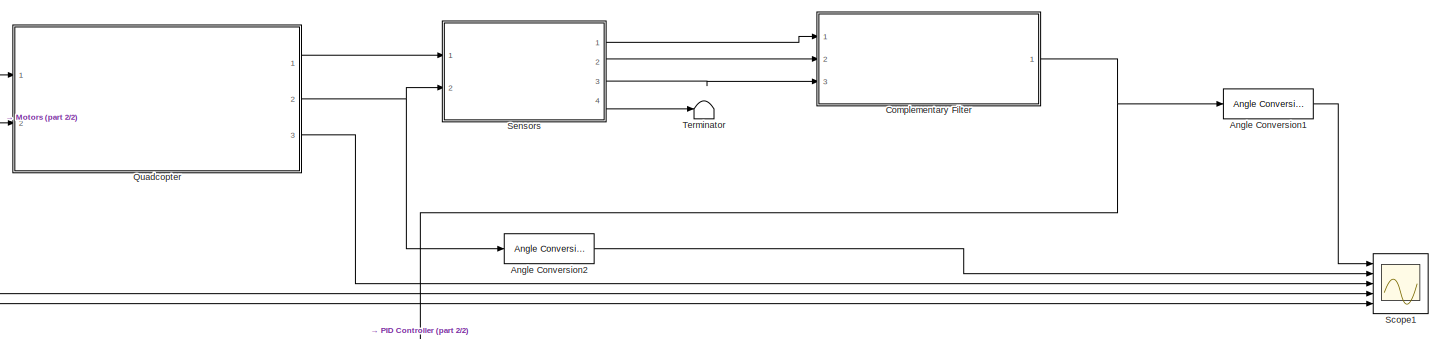
[diagram: root canvas - part 1/2, full width, top band]
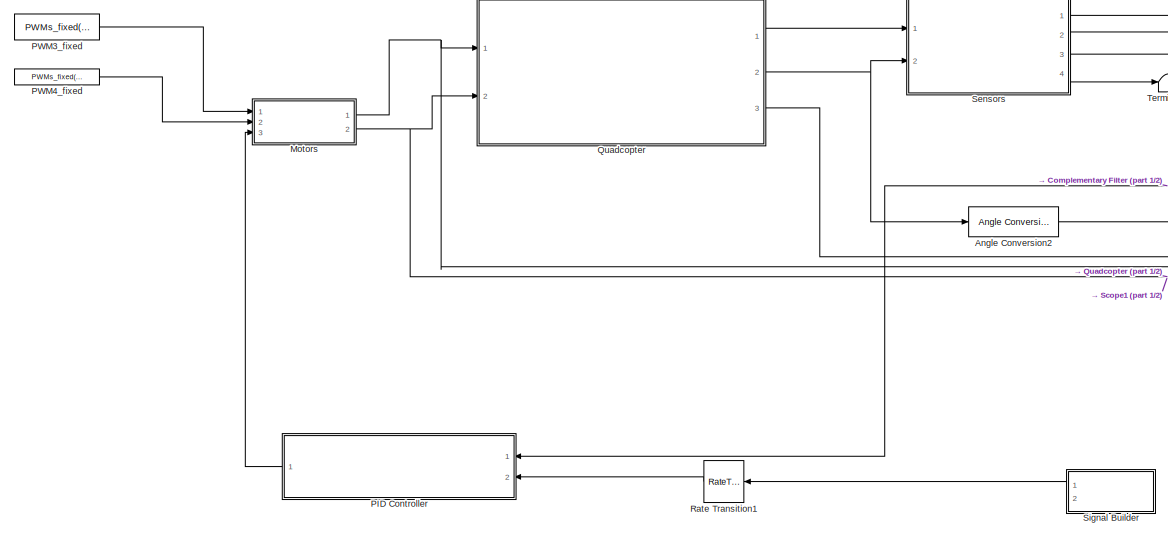
[diagram: root canvas - part 2/2, left side, full height]
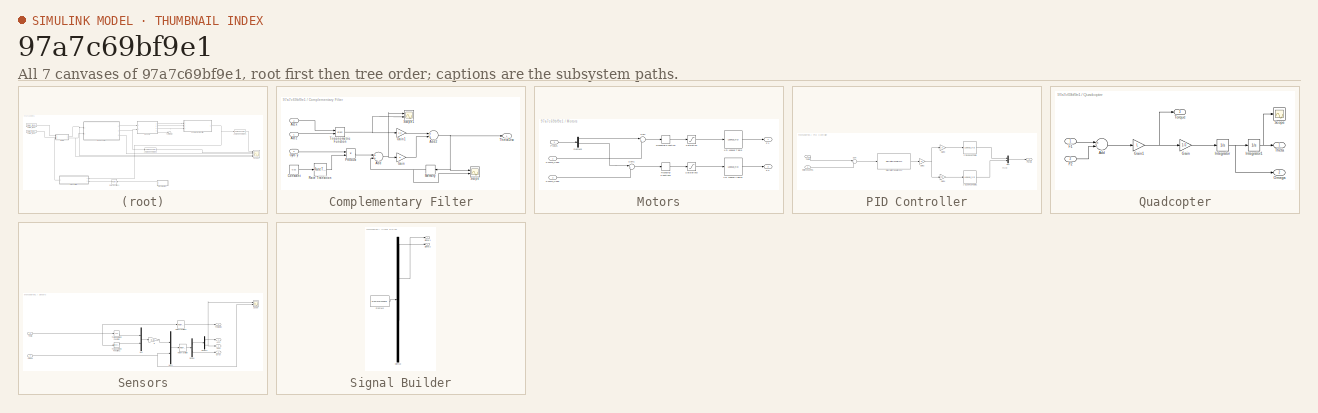
[diagram: thumbnail index - all 7 canvases of the model, root first then tree order]
MODEL slx_97a7c69bf9e1
KIND model
BLOCK [Reference] Angle Conversion1  REF=aerolibconvert2/Angle Conversion
  IU = rad
  OU = deg
  Ports = [1, 1]
  SourceBlock = aerolibconvert2/Angle Conversion
  SourceType = Angle Conversion
BLOCK [Reference] Angle Conversion2  REF=aerolibconvert2/Angle Conversion
  IU = rad
  OU = deg
  Ports = [1, 1]
  SourceBlock = aerolibconvert2/Angle Conversion
  SourceType = Angle Conversion
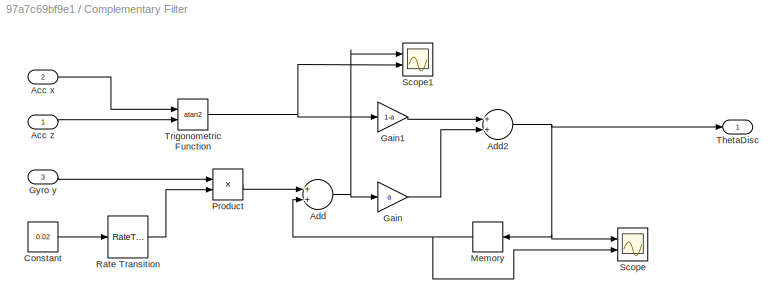
BLOCK [SubSystem] Complementary Filter
  Ports = [3, 1]
  RequestExecContextInheritance = off
BLOCK [Inport] Complementary Filter/Acc x 
  IconDisplay = Port number
  Port = 2
BLOCK [Inport] Complementary Filter/Acc z
  IconDisplay = Port number
BLOCK [Sum] Complementary Filter/Add
  InputSameDT = off
  OutDataTypeStr = Inherit: Inherit via internal rule
  Ports = [2, 1]
  SaturateOnIntegerOverflow = off
BLOCK [Sum] Complementary Filter/Add2
  InputSameDT = off
  OutDataTypeStr = Inherit: Inherit via internal rule
  Ports = [2, 1]
  SaturateOnIntegerOverflow = off
BLOCK [Constant] Complementary Filter/Constant
  Value = 0.02
BLOCK [Gain] Complementary Filter/Gain
  Gain = a
  OutDataTypeStr = Inherit: Inherit via internal rule
  ParamDataTypeStr = Inherit: Inherit via internal rule
  SaturateOnIntegerOverflow = off
BLOCK [Gain] Complementary Filter/Gain1
  Gain = 1-a
  OutDataTypeStr = Inherit: Inherit via internal rule
  ParamDataTypeStr = Inherit: Inherit via internal rule
  SaturateOnIntegerOverflow = off
BLOCK [Inport] Complementary Filter/Gyro y
  IconDisplay = Port number
  Port = 3
BLOCK [Memory] Complementary Filter/Memory
  InheritSampleTime = on
  LinearizeAsDelay = on
  X0 = deg2rad(initial(2))
BLOCK [Product] Complementary Filter/Product
  InputSameDT = off
  OutDataTypeStr = Inherit: Inherit via internal rule
  Ports = [2, 1]
  RndMeth = Floor
  SaturateOnIntegerOverflow = off
BLOCK [RateTransition] Complementary Filter/Rate Transition
  OutPortSampleTime = 0.02
BLOCK [Scope] Complementary Filter/Scope
  Floating = off
  NumInputPorts = 2
  Ports = [2]
  SaveName = ScopeData4
  ShowLegends = off
  YMax = 5~5
  YMin = -5~-5
  ZoomMode = xonly
BLOCK [Scope] Complementary Filter/Scope1
  Floating = off
  NumInputPorts = 2
  Ports = [2]
  SaveName = ScopeData5
  ShowLegends = off
  YMax = 5~5
  YMin = -5~-5
BLOCK [Outport] Complementary Filter/ThetaDisc
  IconDisplay = Port number
BLOCK [Trigonometry] Complementary Filter/Trigonometric Function
  Operator = atan2
  Ports = [2, 1]
BLOCK [SubSystem] Motors
  Ports = [3, 2]
  RequestExecContextInheritance = off
BLOCK [Lookup_n-D] Motors/1-D Lookup Table
  BreakpointsForDimension1 = [1447,1792]
  InternalRulePriority = Speed
  NumberOfTableDimensions = 1
  Ports = [1, 1]
  RndMeth = Simplest
  Table = [1,5]
BLOCK [Lookup_n-D] Motors/1-D Lookup Table1
  BreakpointsForDimension1 = [1455,1832]
  InternalRulePriority = Speed
  NumberOfTableDimensions = 1
  Ports = [1, 1]
  RndMeth = Simplest
  Table = [1,5]
BLOCK [Demux] Motors/Demux3
  DisplayOption = bar
  Outputs = 2
  Ports = [1, 2]
BLOCK [Outport] Motors/F1
  IconDisplay = Port number
BLOCK [Outport] Motors/F2
  IconDisplay = Port number
  Port = 2
BLOCK [Inport] Motors/PWM3_fixed
  IconDisplay = Port number
BLOCK [Inport] Motors/PWM4_fixed
  IconDisplay = Port number
  Port = 2
BLOCK [Inport] Motors/PWMs
  IconDisplay = Port number
  Port = 3
BLOCK [Rounding] Motors/Rounding Function
  Operator = round
BLOCK [Rounding] Motors/Rounding Function1
  Operator = round
BLOCK [Saturate] Motors/Saturation
  InputPortMap = u0
  LowerLimit = 1447
  Ports = [1, 1]
  UpperLimit = 1792
BLOCK [Saturate] Motors/Saturation3
  InputPortMap = u0
  LowerLimit = 1455
  Ports = [1, 1]
  UpperLimit = 1832
BLOCK [Sum] Motors/Sum
  IconShape = round
  InputSameDT = off
  Inputs = |++
  OutDataTypeStr = Inherit: Inherit via internal rule
  Ports = [2, 1]
  SaturateOnIntegerOverflow = off
BLOCK [Sum] Motors/Sum1
  IconShape = round
  InputSameDT = off
  Inputs = |++
  OutDataTypeStr = Inherit: Inherit via internal rule
  Ports = [2, 1]
  SaturateOnIntegerOverflow = off
BLOCK [SubSystem] PID Controller
  Ports = [2, 1]
  RequestExecContextInheritance = off
BLOCK [Lookup_n-D] PID Controller/1-D Lookup Table
  BreakpointsForDimension1 = [-2,2]
  InternalRulePriority = Speed
  NumberOfTableDimensions = 1
  Ports = [1, 1]
  RndMeth = Simplest
  Table = [-138,138]
BLOCK [Lookup_n-D] PID Controller/1-D Lookup Table1
  BreakpointsForDimension1 = [-2,2]
  InternalRulePriority = Speed
  NumberOfTableDimensions = 1
  Ports = [1, 1]
  RndMeth = Simplest
  Table = [-150.8,150.8]
BLOCK [DiscreteTransferFcn] PID Controller/Discrete Transfer Fcn
  Denominator = [0.02+2*n 0.02-2*n]
  InputPortMap = u0
  Numerator = [kp*(0.02+2*Td)  kp*(0.02-2*Td) ]
  Ports = [1, 1]
  SampleTime = 0.02
BLOCK [Gain] PID Controller/Gain2
  Gain = 1/L
  OutDataTypeStr = Inherit: Inherit via internal rule
  ParamDataTypeStr = Inherit: Inherit via internal rule
  SaturateOnIntegerOverflow = off
BLOCK [Gain] PID Controller/Gain3
  Gain = b
  OutDataTypeStr = Inherit: Inherit via internal rule
  ParamDataTypeStr = Inherit: Inherit via internal rule
  SaturateOnIntegerOverflow = off
BLOCK [Gain] PID Controller/Gain4
  Gain = b-1
  OutDataTypeStr = Inherit: Inherit via internal rule
  ParamDataTypeStr = Inherit: Inherit via internal rule
  SaturateOnIntegerOverflow = off
BLOCK [Mux] PID Controller/Mux
  DisplayOption = bar
  Inputs = 2
  Ports = [2, 1]
BLOCK [Outport] PID Controller/PWMs
  IconDisplay = Port number
BLOCK [Inport] PID Controller/Reference Pos
  IconDisplay = Port number
  Port = 2
BLOCK [Sum] PID Controller/Sum
  IconShape = round
  InputSameDT = off
  Inputs = -+
  OutDataTypeStr = Inherit: Inherit via internal rule
  Ports = [2, 1]
  SaturateOnIntegerOverflow = off
BLOCK [Inport] PID Controller/Theta 
  IconDisplay = Port number
BLOCK [Constant] PWM3_fixed
  SampleTime = 0.02
  Value = PWMs_fixed(1)
BLOCK [Constant] PWM4_fixed
  SampleTime = 0.02
  Value = PWMs_fixed(2)
BLOCK [SubSystem] Quadcopter
  Ports = [2, 3]
  RequestExecContextInheritance = off
BLOCK [Sum] Quadcopter/Add
  InputSameDT = off
  Inputs = +-
  OutDataTypeStr = Inherit: Inherit via internal rule
  Ports = [2, 1]
  SaturateOnIntegerOverflow = off
BLOCK [Inport] Quadcopter/F1
  IconDisplay = Port number
BLOCK [Inport] Quadcopter/F2
  IconDisplay = Port number
  Port = 2
BLOCK [Gain] Quadcopter/Gain
  Gain = 1/J
  OutDataTypeStr = Inherit: Inherit via internal rule
  ParamDataTypeStr = Inherit: Inherit via internal rule
  SaturateOnIntegerOverflow = off
BLOCK [Gain] Quadcopter/Gain1
  Gain = L
  OutDataTypeStr = Inherit: Inherit via internal rule
  ParamDataTypeStr = Inherit: Inherit via internal rule
  SaturateOnIntegerOverflow = off
BLOCK [Integrator] Quadcopter/Integrator
  InitialCondition = deg2rad(initial(1))
  Ports = [1, 1]
BLOCK [Integrator] Quadcopter/Integrator1
  InitialCondition = deg2rad(initial(2))
  Ports = [1, 1]
BLOCK [Outport] Quadcopter/Omega
  IconDisplay = Port number
  Port = 2
BLOCK [Scope] Quadcopter/Scope
  Floating = off
  NumInputPorts = 1
  Ports = [1]
  SaveName = ScopeData6
  ShowLegends = off
BLOCK [Outport] Quadcopter/Theta
  IconDisplay = Port number
BLOCK [Outport] Quadcopter/Torque 
  IconDisplay = Port number
  Port = 3
BLOCK [RateTransition] Rate Transition1
  OutPortSampleTime = 0.02
BLOCK [Scope] Scope1
  Floating = off
  NumInputPorts = 5
  Ports = [5]
  SaveName = ScopeData1
  ShowLegends = off
  TimeRange = 30
  YMax = 5~5~5~5~5
  YMin = -5~-5~-5~-5~-5
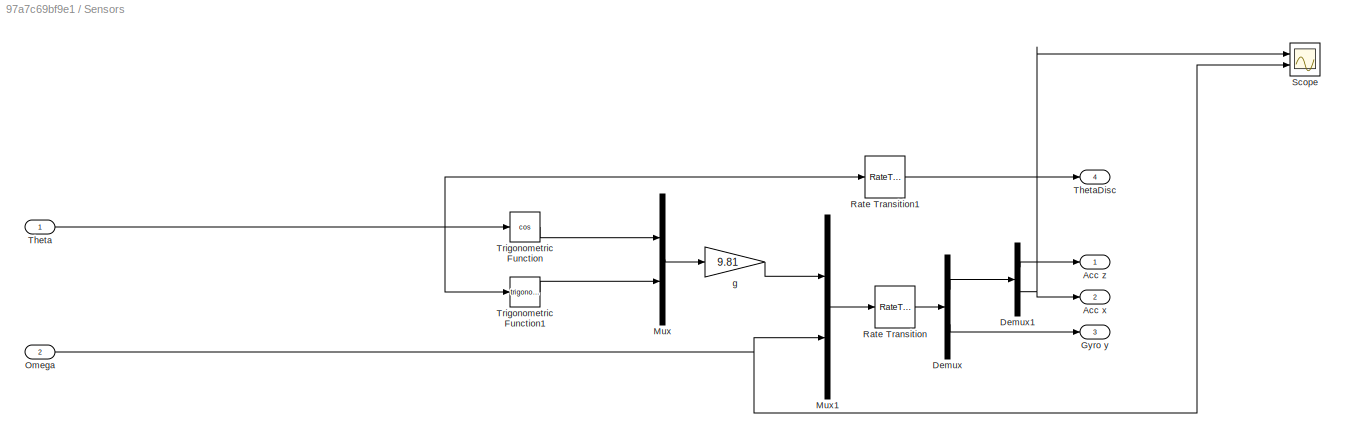
BLOCK [SubSystem] Sensors
  Ports = [2, 4]
  RequestExecContextInheritance = off
BLOCK [Outport] Sensors/Acc x
  IconDisplay = Port number
  Port = 2
BLOCK [Outport] Sensors/Acc z
  IconDisplay = Port number
BLOCK [Demux] Sensors/Demux
  DisplayOption = bar
  Outputs = 2
  Ports = [1, 2]
BLOCK [Demux] Sensors/Demux1
  DisplayOption = bar
  Outputs = 2
  Ports = [1, 2]
BLOCK [Outport] Sensors/Gyro y
  IconDisplay = Port number
  Port = 3
BLOCK [Mux] Sensors/Mux
  DisplayOption = bar
  Inputs = 2
  Ports = [2, 1]
BLOCK [Mux] Sensors/Mux1
  DisplayOption = bar
  Inputs = 2
  Ports = [2, 1]
BLOCK [Inport] Sensors/Omega
  IconDisplay = Port number
  Port = 2
BLOCK [RateTransition] Sensors/Rate Transition
  OutPortSampleTime = 0.02
BLOCK [RateTransition] Sensors/Rate Transition1
  OutPortSampleTime = 0.02
BLOCK [Scope] Sensors/Scope
  Floating = off
  NumInputPorts = 2
  Ports = [2]
  SaveName = ScopeData3
  ShowLegends = off
  YMax = 5~5
  YMin = -5~-5
BLOCK [Inport] Sensors/Theta
  IconDisplay = Port number
BLOCK [Outport] Sensors/ThetaDisc
  IconDisplay = Port number
  Port = 4
BLOCK [Trigonometry] Sensors/Trigonometric Function
  Operator = cos
  Ports = [1, 1]
BLOCK [Trigonometry] Sensors/Trigonometric Function1
  Ports = [1, 1]
BLOCK [Gain] Sensors/g
  Gain = 9.81
  OutDataTypeStr = Inherit: Inherit via internal rule
  ParamDataTypeStr = Inherit: Inherit via internal rule
  SaturateOnIntegerOverflow = off
BLOCK [SubSystem] Signal Builder
  ClipboardFcn = sigbuilder_block('clipboard');
  CloseFcn = sigbuilder_block('close');
  ContinueFcn = sigbuilder_block('continue');
  CopyFcn = sigbuilder_block('copy');
  DeleteFcn = sigbuilder_block('delete');
  LoadFcn = sigbuilder_block('load');
  MaskHideContents = on
  ModelCloseFcn = sigbuilder_block('modelClose');
  NameChangeFcn = sigbuilder_block('namechange');
  OpenFcn = sigbuilder_block('open',[6.75 6.75 1138.5 568.5 ]);
  PauseFcn = sigbuilder_block('pause');
  Ports = [0, 2]
  PreSaveFcn = sigbuilder_block('preSave');
  RequestExecContextInheritance = off
  StartFcn = sigbuilder_block('start');
  StopFcn = sigbuilder_block('stop');
  Tag = STV Subsys
BLOCK [Demux] Signal Builder/Demux
  Outputs = 2
  Ports = [1, 2]
  Tag = STV Demux
BLOCK [FromWorkspace] Signal Builder/FromWs
  SampleTime = 0
  Tag = STV FromWs
  VariableName = tuvar
  ZeroCross = on
BLOCK [Outport] Signal Builder/Signal 1
  IconDisplay = Port number
  Tag = STV Outport
BLOCK [Outport] Signal Builder/Signal 2
  IconDisplay = Port number
  Port = 2
  Tag = STV Outport
BLOCK [Terminator] Terminator
ANNOTATION PID Controller: PWM4
LINE Angle Conversion1:1 -> Scope1:1
LINE Angle Conversion2:1 -> Scope1:2
LINE Complementary Filter/Acc x :1 -> Complementary Filter/Trigonometric Function:1
LINE Complementary Filter/Acc z:1 -> Complementary Filter/Trigonometric Function:2
NET Complementary Filter/Add2:1 -> Complementary Filter/Memory:1, Complementary Filter/Scope:1, Complementary Filter/ThetaDisc:1
NET Complementary Filter/Add:1 -> Complementary Filter/Gain:1, Complementary Filter/Scope1:1
LINE Complementary Filter/Constant:1 -> Complementary Filter/Rate Transition:1
LINE Complementary Filter/Gain1:1 -> Complementary Filter/Add2:1
LINE Complementary Filter/Gain:1 -> Complementary Filter/Add2:2
LINE Complementary Filter/Gyro y:1 -> Complementary Filter/Product:1
NET Complementary Filter/Memory:1 -> Complementary Filter/Add:2, Complementary Filter/Scope:2
LINE Complementary Filter/Product:1 -> Complementary Filter/Add:1
LINE Complementary Filter/Rate Transition:1 -> Complementary Filter/Product:2
NET Complementary Filter/Trigonometric Function:1 -> Complementary Filter/Gain1:1, Complementary Filter/Scope1:2
NET Complementary Filter:1 -> Angle Conversion1:1, PID Controller:1
LINE Motors/1-D Lookup Table1:1 -> Motors/F2:1
LINE Motors/1-D Lookup Table:1 -> Motors/F1:1
LINE Motors/Demux3:1 -> Motors/Sum:1
LINE Motors/Demux3:2 -> Motors/Sum1:1
LINE Motors/PWM3_fixed:1 -> Motors/Sum:2
LINE Motors/PWM4_fixed:1 -> Motors/Sum1:2
LINE Motors/PWMs:1 -> Motors/Demux3:1
LINE Motors/Rounding Function1:1 -> Motors/Saturation3:1
LINE Motors/Rounding Function:1 -> Motors/Saturation:1
LINE Motors/Saturation3:1 -> Motors/1-D Lookup Table1:1
LINE Motors/Saturation:1 -> Motors/1-D Lookup Table:1
LINE Motors/Sum1:1 -> Motors/Rounding Function1:1
LINE Motors/Sum:1 -> Motors/Rounding Function:1
NET Motors:1 -> Quadcopter:1, Scope1:4
NET Motors:2 -> Quadcopter:2, Scope1:5
LINE PID Controller/1-D Lookup Table1:1 -> PID Controller/Mux:2
LINE PID Controller/1-D Lookup Table:1 -> PID Controller/Mux:1
LINE PID Controller/Discrete Transfer Fcn:1 -> PID Controller/Gain2:1
NET PID Controller/Gain2:1 -> PID Controller/Gain3:1, PID Controller/Gain4:1
LINE PID Controller/Gain3:1 -> PID Controller/1-D Lookup Table:1
LINE PID Controller/Gain4:1 -> PID Controller/1-D Lookup Table1:1
LINE PID Controller/Mux:1 -> PID Controller/PWMs:1
LINE PID Controller/Reference Pos:1 -> PID Controller/Sum:2
LINE PID Controller/Sum:1 -> PID Controller/Discrete Transfer Fcn:1
LINE PID Controller/Theta :1 -> PID Controller/Sum:1
LINE PID Controller:1 -> Motors:3
LINE PWM3_fixed:1 -> Motors:1
LINE PWM4_fixed:1 -> Motors:2
LINE Quadcopter/Add:1 -> Quadcopter/Gain1:1
LINE Quadcopter/F1:1 -> Quadcopter/Add:1
LINE Quadcopter/F2:1 -> Quadcopter/Add:2
NET Quadcopter/Gain1:1 -> Quadcopter/Gain:1, Quadcopter/Torque :1
LINE Quadcopter/Gain:1 -> Quadcopter/Integrator:1
NET Quadcopter/Integrator1:1 -> Quadcopter/Scope:1, Quadcopter/Theta:1
NET Quadcopter/Integrator:1 -> Quadcopter/Integrator1:1, Quadcopter/Omega:1
LINE Quadcopter:1 -> Sensors:1
NET Quadcopter:2 -> Angle Conversion2:1, Sensors:2
LINE Quadcopter:3 -> Scope1:3
LINE Rate Transition1:1 -> PID Controller:2
LINE Sensors/Demux1:1 -> Sensors/Acc z:1
NET Sensors/Demux1:2 -> Sensors/Acc x:1, Sensors/Scope:1
LINE Sensors/Demux:1 -> Sensors/Demux1:1
LINE Sensors/Demux:2 -> Sensors/Gyro y:1
LINE Sensors/Mux1:1 -> Sensors/Rate Transition:1
LINE Sensors/Mux:1 -> Sensors/g:1
NET Sensors/Omega:1 -> Sensors/Mux1:2, Sensors/Scope:2
LINE Sensors/Rate Transition1:1 -> Sensors/ThetaDisc:1
LINE Sensors/Rate Transition:1 -> Sensors/Demux:1
NET Sensors/Theta:1 -> Sensors/Rate Transition1:1, Sensors/Trigonometric Function1:1, Sensors/Trigonometric Function:1
LINE Sensors/Trigonometric Function1:1 -> Sensors/Mux:2
LINE Sensors/Trigonometric Function:1 -> Sensors/Mux:1
LINE Sensors/g:1 -> Sensors/Mux1:1
LINE Sensors:1 -> Complementary Filter:1
LINE Sensors:2 -> Complementary Filter:2
LINE Sensors:3 -> Complementary Filter:3
LINE Sensors:4 -> Terminator:1
LINE Signal Builder:1 -> Rate Transition1:1
note: NET lines group one-source signal fan-out (src -> all destinations, sorted); 1:1 wires keep LINE
